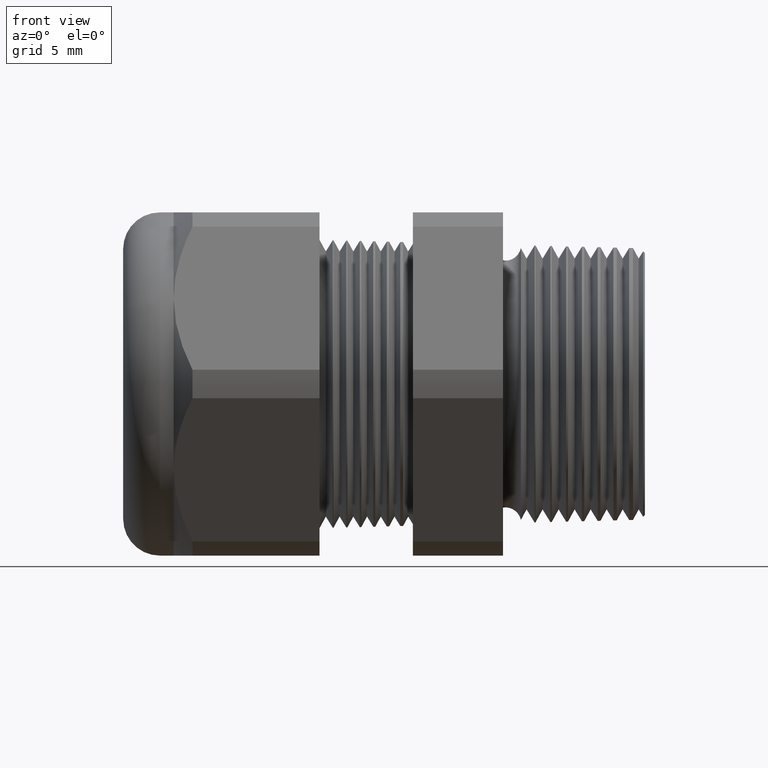
[diagram: clean part render]
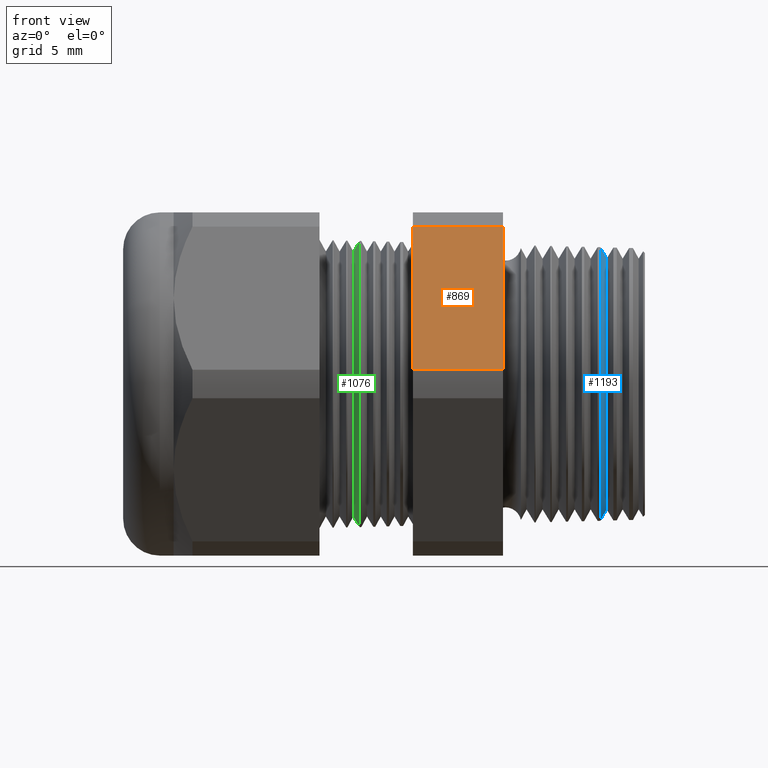
[diagram: same view with three faces highlighted in distinct colors, each labeled with its STEP entity id]
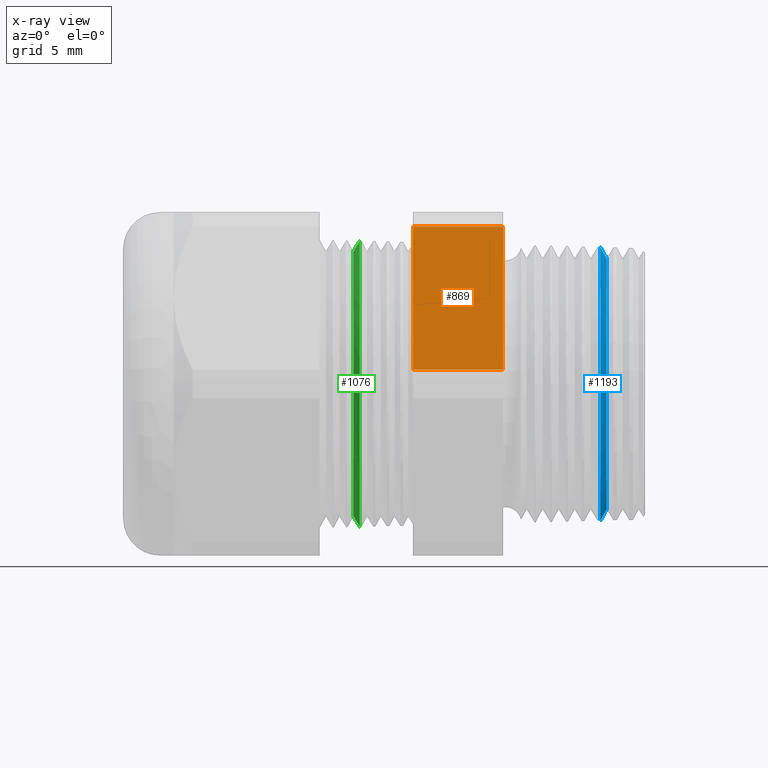
[diagram: x-ray of the same camera — body ghosted, the three highlighted faces saturated]
A machine part, front view with three faces highlighted in distinct colors.
The next image is the same camera in x-ray (body ghosted, the three faces saturated) — at least one of them is partly hidden behind the body in this view.
Their STEP definitions:

[orange] entity #869 — the highlighted planar face has unit normal (0, -0.866, 0.5).
#740 = VERTEX_POINT ( 'NONE', #2780 ) ;
#742 = EDGE_CURVE ( 'NONE', #740, #743, #2779, .T. ) ;
#743 = VERTEX_POINT ( 'NONE', #2775 ) ;
#865 = EDGE_CURVE ( 'NONE', #743, #866, #3000, .T. ) ;
#866 = VERTEX_POINT ( 'NONE', #2996 ) ;
#869 = ADVANCED_FACE ( 'NONE', ( #2990 ), #2989, .T. ) ;
#870 = EDGE_LOOP ( 'NONE', ( #871, #872, #873, #929 ) ) ;
#871 = ORIENTED_EDGE ( 'NONE', *, *, #865, .F. ) ;
#872 = ORIENTED_EDGE ( 'NONE', *, *, #742, .F. ) ;
#873 = ORIENTED_EDGE ( 'NONE', *, *, #874, .T. ) ;
#874 = EDGE_CURVE ( 'NONE', #740, #875, #2984, .T. ) ;
#875 = VERTEX_POINT ( 'NONE', #2979 ) ;
#929 = ORIENTED_EDGE ( 'NONE', *, *, #930, .F. ) ;
#930 = EDGE_CURVE ( 'NONE', #866, #875, #3139, .T. ) ;
#2775 = CARTESIAN_POINT ( 'NONE',  ( -0.3099999999999998300, -0.4150909474475088000, 0.03104138925901241800 ) ) ;
#2776 = DIRECTION ( 'NONE',  ( 0.0000000000000000000, -0.4999999999999998300, -0.8660254037844386000 ) ) ;
#2777 = VECTOR ( 'NONE', #2776, 39.37007874015748900 ) ;
#2778 = CARTESIAN_POINT ( 'NONE',  ( -0.3100000000000000000, -0.1372595264191648300, 0.5122595264191646100 ) ) ;
#2779 = LINE ( 'NONE', #2778, #2777 ) ;
#2780 = CARTESIAN_POINT ( 'NONE',  ( -0.3099999999999998300, -0.2344281053908205100, 0.3439586107409878200 ) ) ;
#2979 = CARTESIAN_POINT ( 'NONE',  ( -0.5068503939999997600, -0.2344281053908205100, 0.3439586107409878200 ) ) ;
#2980 = DIRECTION ( 'NONE',  ( -1.000000000000000000, 0.0000000000000000000, 0.0000000000000000000 ) ) ;
#2981 = VECTOR ( 'NONE', #2980, 39.37007874015748100 ) ;
#2983 = CARTESIAN_POINT ( 'NONE',  ( 0.0000000000000000000, -0.2344281053908205100, 0.3439586107409878200 ) ) ;
#2984 = LINE ( 'NONE', #2983, #2981 ) ;
#2985 = DIRECTION ( 'NONE',  ( 0.0000000000000000000, -0.4999999999999998300, -0.8660254037844386000 ) ) ;
#2986 = DIRECTION ( 'NONE',  ( 0.0000000000000000000, -0.8660254037844387100, 0.4999999999999998900 ) ) ;
#2987 = CARTESIAN_POINT ( 'NONE',  ( 0.0000000000000000000, -0.4150909474475088000, 0.03104138925901233800 ) ) ;
#2988 = AXIS2_PLACEMENT_3D ( 'NONE', #2987, #2986, #2985 ) ;
#2989 = PLANE ( 'NONE',  #2988 ) ;
#2990 = FACE_OUTER_BOUND ( 'NONE', #870, .T. ) ;
#2996 = CARTESIAN_POINT ( 'NONE',  ( -0.5068503939999997600, -0.4150909474475088000, 0.03104138925901241800 ) ) ;
#2997 = DIRECTION ( 'NONE',  ( -1.000000000000000000, 0.0000000000000000000, 0.0000000000000000000 ) ) ;
#2998 = VECTOR ( 'NONE', #2997, 39.37007874015748100 ) ;
#2999 = CARTESIAN_POINT ( 'NONE',  ( 0.0000000000000000000, -0.4150909474475088000, 0.03104138925901241800 ) ) ;
#3000 = LINE ( 'NONE', #2999, #2998 ) ;
#3136 = DIRECTION ( 'NONE',  ( 0.0000000000000000000, 0.4999999999999998300, 0.8660254037844386000 ) ) ;
#3137 = VECTOR ( 'NONE', #3136, 39.37007874015748900 ) ;
#3138 = CARTESIAN_POINT ( 'NONE',  ( -0.5068503939999998700, -0.1372595264191648300, 0.5122595264191646100 ) ) ;
#3139 = LINE ( 'NONE', #3138, #3137 ) ;

[blue] entity #1193 — the highlighted conical surface has half-angle 61.5 deg.
#287 = EDGE_CURVE ( 'NONE', #509, #506, #1844, .T. ) ;
#506 = VERTEX_POINT ( 'NONE', #2245 ) ;
#509 = VERTEX_POINT ( 'NONE', #2302 ) ;
#511 = EDGE_CURVE ( 'NONE', #565, #509, #2301, .T. ) ;
#515 = EDGE_CURVE ( 'NONE', #517, #506, #2296, .T. ) ;
#517 = VERTEX_POINT ( 'NONE', #2282 ) ;
#565 = VERTEX_POINT ( 'NONE', #2386 ) ;
#1174 = ORIENTED_EDGE ( 'NONE', *, *, #511, .T. ) ;
#1175 = ORIENTED_EDGE ( 'NONE', *, *, #287, .T. ) ;
#1193 = ADVANCED_FACE ( 'NONE', ( #3411 ), #3406, .T. ) ;
#1194 = EDGE_LOOP ( 'NONE', ( #1245, #1246, #1174, #1175 ) ) ;
#1245 = ORIENTED_EDGE ( 'NONE', *, *, #515, .F. ) ;
#1246 = ORIENTED_EDGE ( 'NONE', *, *, #1247, .F. ) ;
#1247 = EDGE_CURVE ( 'NONE', #565, #517, #3526, .T. ) ;
#1836 = DIRECTION ( 'NONE',  ( 0.0000000000000000000, 0.0000000000000000000, 1.000000000000000000 ) ) ;
#1837 = DIRECTION ( 'NONE',  ( 1.000000000000000000, 0.0000000000000000000, 0.0000000000000000000 ) ) ;
#1838 = CARTESIAN_POINT ( 'NONE',  ( -0.09697120011612851700, 0.0000000000000000000, 0.0000000000000000000 ) ) ;
#1839 = AXIS2_PLACEMENT_3D ( 'NONE', #1838, #1837, #1836 ) ;
#1844 = CIRCLE ( 'NONE', #1839, 0.2989245951974941500 ) ;
#2245 = CARTESIAN_POINT ( 'NONE',  ( -0.09697120011612851700, 3.661758755805578100E-017, -0.2989245951974942000 ) ) ;
#2282 = CARTESIAN_POINT ( 'NONE',  ( -0.08347073567907503700, 3.508517728844527900E-017, -0.2740598328493996600 ) ) ;
#2288 = DIRECTION ( 'NONE',  ( -0.4771587602596187900, 1.076240564057388000E-016, -0.8788171126619597200 ) ) ;
#2289 = VECTOR ( 'NONE', #2288, 39.37007874015748900 ) ;
#2290 = CARTESIAN_POINT ( 'NONE',  ( -0.09999999999999982500, 3.729085638361556900E-017, -0.3045029506432296900 ) ) ;
#2296 = LINE ( 'NONE', #2290, #2289 ) ;
#2298 = DIRECTION ( 'NONE',  ( -0.4771587602596187900, 0.0000000000000000000, 0.8788171126619597200 ) ) ;
#2299 = VECTOR ( 'NONE', #2298, 39.37007874015748900 ) ;
#2300 = CARTESIAN_POINT ( 'NONE',  ( -0.09999999999999982500, 0.0000000000000000000, 0.3045029506432296900 ) ) ;
#2301 = LINE ( 'NONE', #2300, #2299 ) ;
#2302 = CARTESIAN_POINT ( 'NONE',  ( -0.09697120011612851700, 0.0000000000000000000, 0.2989245951974941500 ) ) ;
#2386 = CARTESIAN_POINT ( 'NONE',  ( -0.08347073567907503700, 0.0000000000000000000, 0.2740598328493996600 ) ) ;
#3401 = DIRECTION ( 'NONE',  ( 0.0000000000000000000, 0.0000000000000000000, 1.000000000000000000 ) ) ;
#3402 = DIRECTION ( 'NONE',  ( -1.000000000000000000, 0.0000000000000000000, 0.0000000000000000000 ) ) ;
#3403 = CARTESIAN_POINT ( 'NONE',  ( -0.09999999999999982500, 0.0000000000000000000, 0.0000000000000000000 ) ) ;
#3404 = AXIS2_PLACEMENT_3D ( 'NONE', #3403, #3402, #3401 ) ;
#3406 = CONICAL_SURFACE ( 'NONE', #3404, 0.3045029506432296900, 1.073377489976501000 ) ;
#3411 = FACE_OUTER_BOUND ( 'NONE', #1194, .T. ) ;
#3465 = CARTESIAN_POINT ( 'NONE',  ( -0.08347073567907503700, 0.0000000000000000000, 0.0000000000000000000 ) ) ;
#3523 = DIRECTION ( 'NONE',  ( 0.0000000000000000000, 0.0000000000000000000, -1.000000000000000000 ) ) ;
#3524 = DIRECTION ( 'NONE',  ( 1.000000000000000000, 0.0000000000000000000, 0.0000000000000000000 ) ) ;
#3525 = AXIS2_PLACEMENT_3D ( 'NONE', #3465, #3524, #3523 ) ;
#3526 = CIRCLE ( 'NONE', #3525, 0.2740598328493996600 ) ;

[green] entity #1076 — the highlighted conical surface has half-angle 58.5 deg.
#374 = EDGE_CURVE ( 'NONE', #1051, #3869, #1993, .T. ) ;
#1022 = EDGE_CURVE ( 'NONE', #3874, #3871, #3229, .T. ) ;
#1051 = VERTEX_POINT ( 'NONE', #3256 ) ;
#1076 = ADVANCED_FACE ( 'NONE', ( #3288 ), #3287, .T. ) ;
#1077 = EDGE_LOOP ( 'NONE', ( #1078, #1079, #1080, #1081 ) ) ;
#1078 = ORIENTED_EDGE ( 'NONE', *, *, #3875, .F. ) ;
#1079 = ORIENTED_EDGE ( 'NONE', *, *, #1022, .T. ) ;
#1080 = ORIENTED_EDGE ( 'NONE', *, *, #1298, .T. ) ;
#1081 = ORIENTED_EDGE ( 'NONE', *, *, #374, .T. ) ;
#1298 = EDGE_CURVE ( 'NONE', #3871, #1051, #3587, .T. ) ;
#1989 = DIRECTION ( 'NONE',  ( 0.0000000000000000000, 0.0000000000000000000, -1.000000000000000000 ) ) ;
#1990 = DIRECTION ( 'NONE',  ( -1.000000000000000000, 0.0000000000000000000, 0.0000000000000000000 ) ) ;
#1991 = CARTESIAN_POINT ( 'NONE',  ( -0.6229561201265145800, 0.0000000000000000000, 0.0000000000000000000 ) ) ;
#1992 = AXIS2_PLACEMENT_3D ( 'NONE', #1991, #1990, #1989 ) ;
#1993 = CIRCLE ( 'NONE', #1992, 0.3126979950594574500 ) ;
#3226 = DIRECTION ( 'NONE',  ( 0.0000000000000000000, 0.0000000000000000000, -1.000000000000000000 ) ) ;
#3227 = DIRECTION ( 'NONE',  ( 1.000000000000000000, 0.0000000000000000000, 0.0000000000000000000 ) ) ;
#3228 = AXIS2_PLACEMENT_3D ( 'NONE', #3234, #3227, #3226 ) ;
#3229 = CIRCLE ( 'NONE', #3228, 0.2896307351718082600 ) ;
#3234 = CARTESIAN_POINT ( 'NONE',  ( -0.6370917551658957800, 0.0000000000000000000, 0.0000000000000000000 ) ) ;
#3256 = CARTESIAN_POINT ( 'NONE',  ( -0.6229561201265145800, 3.829445987493594000E-017, -0.3126979950594573900 ) ) ;
#3283 = DIRECTION ( 'NONE',  ( 0.0000000000000000000, 0.0000000000000000000, -1.000000000000000000 ) ) ;
#3284 = DIRECTION ( 'NONE',  ( 1.000000000000000000, 0.0000000000000000000, 0.0000000000000000000 ) ) ;
#3285 = AXIS2_PLACEMENT_3D ( 'NONE', #3293, #3284, #3283 ) ;
#3287 = CONICAL_SURFACE ( 'NONE', #3285, 0.2896307351718082600, 1.021017612416700500 ) ;
#3288 = FACE_OUTER_BOUND ( 'NONE', #1077, .T. ) ;
#3293 = CARTESIAN_POINT ( 'NONE',  ( -0.6370917551658957800, 0.0000000000000000000, 0.0000000000000000000 ) ) ;
#3584 = DIRECTION ( 'NONE',  ( 0.5224985647159337000, 0.0000000000000000000, -0.8526401643541013900 ) ) ;
#3585 = VECTOR ( 'NONE', #3584, 39.37007874015748900 ) ;
#3586 = CARTESIAN_POINT ( 'NONE',  ( -0.6370917551658957800, 0.0000000000000000000, -0.2896307351718082600 ) ) ;
#3587 = LINE ( 'NONE', #3586, #3585 ) ;
#3645 = DIRECTION ( 'NONE',  ( 0.5224985647159337000, 1.044183048100723500E-016, 0.8526401643541013900 ) ) ;
#3646 = VECTOR ( 'NONE', #3645, 39.37007874015748900 ) ;
#3647 = CARTESIAN_POINT ( 'NONE',  ( -0.6370917551658957800, 3.546953527628497700E-017, 0.2896307351718082600 ) ) ;
#3648 = LINE ( 'NONE', #3647, #3646 ) ;
#3649 = CARTESIAN_POINT ( 'NONE',  ( -0.6370917551658957800, 0.0000000000000000000, 0.2896307351718082600 ) ) ;
#3650 = CARTESIAN_POINT ( 'NONE',  ( -0.6370917551658957800, 3.692536165126864400E-017, -0.2896307351718082600 ) ) ;
#3656 = CARTESIAN_POINT ( 'NONE',  ( -0.6229561201265145800, 0.0000000000000000000, 0.3126979950594573900 ) ) ;
#3869 = VERTEX_POINT ( 'NONE', #3656 ) ;
#3871 = VERTEX_POINT ( 'NONE', #3650 ) ;
#3874 = VERTEX_POINT ( 'NONE', #3649 ) ;
#3875 = EDGE_CURVE ( 'NONE', #3874, #3869, #3648, .T. ) ;